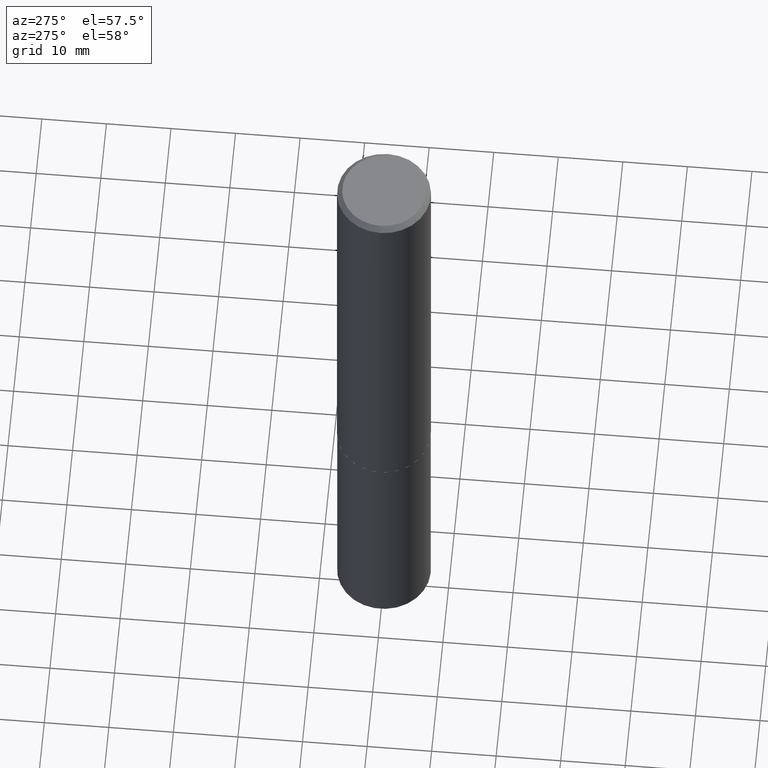
[diagram: clean part render]
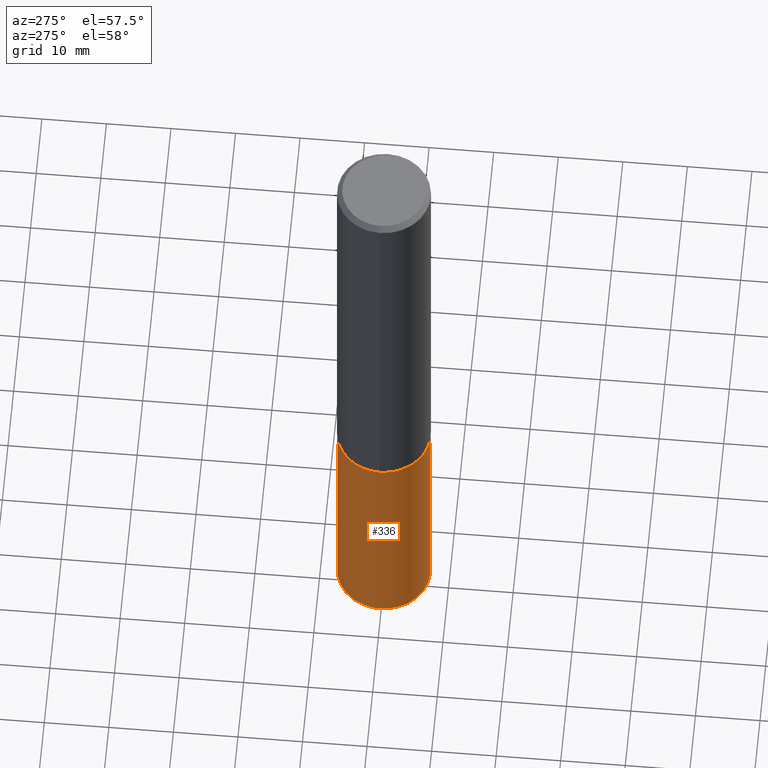
[diagram: same view with one face highlighted and labeled with its STEP entity id]
A machine part, auxiliary view. The second image highlights one B-rep face of the part: STEP entity #336.
In plain terms, the highlighted cylindrical surface (partial cylindrical patch) has radius 7.2504 mm, axis along (-0, 0, 1).
Its self-contained STEP definition (entity closure, byte-faithful):
#15 = LINE ( 'NONE', #259, #46 ) ;
#19 = DIRECTION ( 'NONE',  ( -6.982962677686265922E-15, -1.000000000000000000, 3.828128209723963046E-15 ) ) ;
#37 = VERTEX_POINT ( 'NONE', #187 ) ;
#42 = DIRECTION ( 'NONE',  ( -2.445146152263225319E-29, 3.491943397623643966E-15, 1.000000000000000000 ) ) ;
#46 = VECTOR ( 'NONE', #340, 39.37007874015748143 ) ;
#63 = ORIENTED_EDGE ( 'NONE', *, *, #367, .F. ) ;
#80 = DIRECTION ( 'NONE',  ( -6.982962677686265922E-15, -1.000000000000000000, 3.828128209723963046E-15 ) ) ;
#102 = CARTESIAN_POINT ( 'NONE',  ( 2.028244239227311162E-15, 0.2854499999999851600, -4.280097960714495997 ) ) ;
#106 = CARTESIAN_POINT ( 'NONE',  ( 1.046634793787725127E-28, -1.494459548365832661E-14, -4.280097960714495109 ) ) ;
#108 = CARTESIAN_POINT ( 'NONE',  ( -1.993286696345477508E-15, -0.2854500000000095294, -2.736299999999999066 ) ) ;
#111 = VERTEX_POINT ( 'NONE', #198 ) ;
#123 = CIRCLE ( 'NONE', #191, 0.2854499999999999815 ) ;
#133 = CARTESIAN_POINT ( 'NONE',  ( -1.993286696345477508E-15, -0.2854500000000095294, -2.736299999999999066 ) ) ;
#163 = AXIS2_PLACEMENT_3D ( 'NONE', #233, #380, #202 ) ;
#178 = ORIENTED_EDGE ( 'NONE', *, *, #309, .T. ) ;
#180 = ORIENTED_EDGE ( 'NONE', *, *, #246, .T. ) ;
#187 = CARTESIAN_POINT ( 'NONE',  ( 2.028244239227311162E-15, 0.2854499999999904891, -2.736300000000001287 ) ) ;
#191 = AXIS2_PLACEMENT_3D ( 'NONE', #106, #262, #80 ) ;
#198 = CARTESIAN_POINT ( 'NONE',  ( -1.993286696345440432E-15, -0.2854500000000150250, -4.280097960714494221 ) ) ;
#202 = DIRECTION ( 'NONE',  ( -6.982962677686265922E-15, -1.000000000000000000, 3.828128209723963046E-15 ) ) ;
#218 = VECTOR ( 'NONE', #42, 39.37007874015748143 ) ;
#233 = CARTESIAN_POINT ( 'NONE',  ( 6.691536294364390280E-29, -9.553740387476499873E-15, -2.736299999999999955 ) ) ;
#246 = EDGE_CURVE ( 'NONE', #111, #353, #373, .T. ) ;
#259 = CARTESIAN_POINT ( 'NONE',  ( 2.028244239227272508E-15, 0.2854499999999904336, -2.736300000000001287 ) ) ;
#262 = DIRECTION ( 'NONE',  ( -2.445146152263225319E-29, 3.491943397623643572E-15, 1.000000000000000000 ) ) ;
#264 = CYLINDRICAL_SURFACE ( 'NONE', #163, 0.2854499999999999815 ) ;
#268 = VERTEX_POINT ( 'NONE', #102 ) ;
#277 = CIRCLE ( 'NONE', #372, 0.2854499999999999815 ) ;
#280 = EDGE_CURVE ( 'NONE', #268, #37, #15, .T. ) ;
#289 = DIRECTION ( 'NONE',  ( -2.445146152263225319E-29, 3.491943397623643572E-15, 1.000000000000000000 ) ) ;
#291 = CARTESIAN_POINT ( 'NONE',  ( 6.691536294364390280E-29, -9.553740387476499873E-15, -2.736299999999999955 ) ) ;
#292 = EDGE_LOOP ( 'NONE', ( #320, #178, #180, #63 ) ) ;
#294 = FACE_OUTER_BOUND ( 'NONE', #292, .T. ) ;
#309 = EDGE_CURVE ( 'NONE', #268, #111, #123, .T. ) ;
#320 = ORIENTED_EDGE ( 'NONE', *, *, #280, .F. ) ;
#336 = ADVANCED_FACE ( 'NONE', ( #294 ), #264, .T. ) ;
#340 = DIRECTION ( 'NONE',  ( -2.445146152263225319E-29, 3.491943397623643966E-15, 1.000000000000000000 ) ) ;
#353 = VERTEX_POINT ( 'NONE', #108 ) ;
#367 = EDGE_CURVE ( 'NONE', #37, #353, #277, .T. ) ;
#372 = AXIS2_PLACEMENT_3D ( 'NONE', #291, #289, #19 ) ;
#373 = LINE ( 'NONE', #133, #218 ) ;
#380 = DIRECTION ( 'NONE',  ( -2.445146152263225319E-29, 3.491943397623643572E-15, 1.000000000000000000 ) ) ;